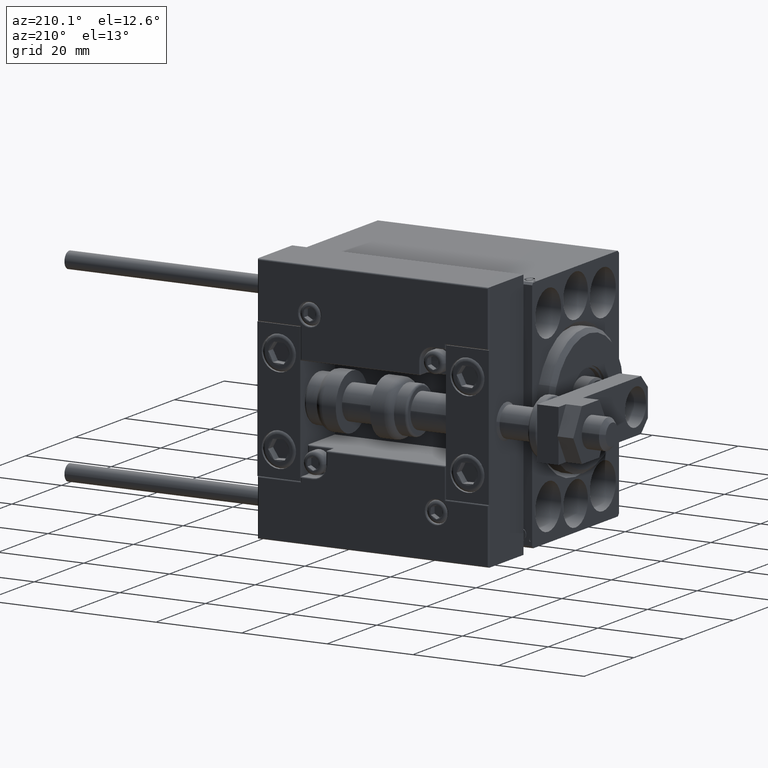
[diagram: clean part render]
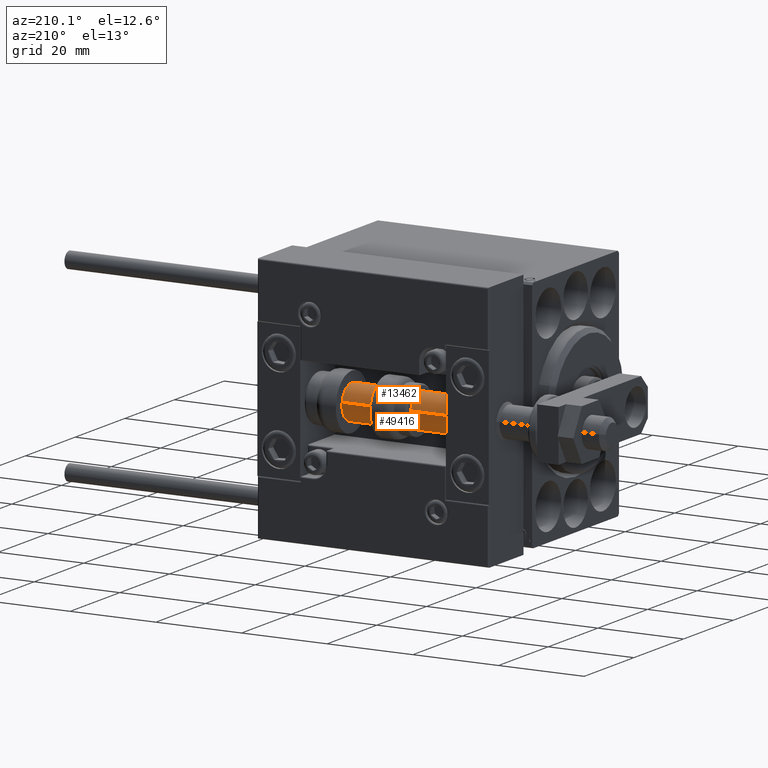
[diagram: same view with one multi-face feature highlighted, each face labeled with its STEP entity id]
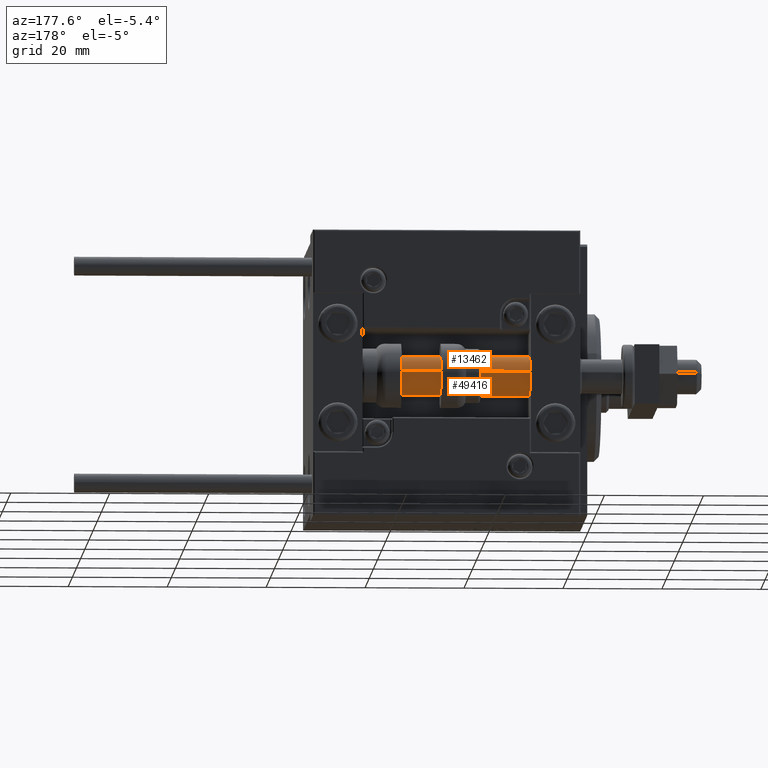
[diagram: same view with one multi-face feature highlighted, each face labeled with its STEP entity id]
A machine part, auxiliary view. The highlighted faces form ONE feature: a constant-radius fillet chain: 2 tangent blend faces with common blend radius 4 mm. The faces share edges in the B-rep.
A second angle (auxiliary view) of the same feature is appended — it is thin or edge-on in the first view.
Their STEP definitions:
[1] entity #13462 (Cylinder):
#1349 = VERTEX_POINT ( 'NONE', #41423 ) ;
#2511 = FACE_OUTER_BOUND ( 'NONE', #38320, .T. ) ;
#5611 = EDGE_CURVE ( 'NONE', #46534, #7481, #36860, .T. ) ;
#7481 = VERTEX_POINT ( 'NONE', #30285 ) ;
#9385 = ORIENTED_EDGE ( 'NONE', *, *, #5611, .T. ) ;
#9506 = CARTESIAN_POINT ( 'NONE',  ( -4.000000000000000000, 0.000000000000000000, 56.00000000000000000 ) ) ;
#13069 = DIRECTION ( 'NONE',  ( -0.000000000000000000, -0.000000000000000000, -1.000000000000000000 ) ) ;
#13462 = ADVANCED_FACE ( 'NONE', ( #2511 ), #45094, .T. ) ;
#19023 = CIRCLE ( 'NONE', #36840, 4.000000000000000000 ) ;
#20315 = CARTESIAN_POINT ( 'NONE',  ( 0.000000000000000000, 0.000000000000000000, 2.000000000000036415 ) ) ;
#20431 = DIRECTION ( 'NONE',  ( 1.000000000000000000, 0.000000000000000000, 0.000000000000000000 ) ) ;
#20774 = CIRCLE ( 'NONE', #37777, 4.000000000000000000 ) ;
#21395 = CARTESIAN_POINT ( 'NONE',  ( 4.000000000000000000, 4.898587196589412829E-16, 56.00000000000000000 ) ) ;
#22328 = CARTESIAN_POINT ( 'NONE',  ( 4.000000000000000000, 4.898587196589412829E-16, 56.00000000000000000 ) ) ;
#22341 = VERTEX_POINT ( 'NONE', #29354 ) ;
#22644 = EDGE_CURVE ( 'NONE', #46534, #22341, #19023, .T. ) ;
#28036 = ORIENTED_EDGE ( 'NONE', *, *, #43058, .T. ) ;
#29354 = CARTESIAN_POINT ( 'NONE',  ( -4.000000000000000000, 0.000000000000000000, 56.00000000000000000 ) ) ;
#30285 = CARTESIAN_POINT ( 'NONE',  ( 4.000000000000000000, 4.898587196589412829E-16, 2.000000000000036415 ) ) ;
#33469 = DIRECTION ( 'NONE',  ( -0.000000000000000000, -0.000000000000000000, -1.000000000000000000 ) ) ;
#34091 = VECTOR ( 'NONE', #13069, 1000.000000000000000 ) ;
#35601 = VECTOR ( 'NONE', #40165, 1000.000000000000000 ) ;
#35891 = AXIS2_PLACEMENT_3D ( 'NONE', #48901, #33469, #37003 ) ;
#36840 = AXIS2_PLACEMENT_3D ( 'NONE', #47551, #40198, #20431 ) ;
#36860 = LINE ( 'NONE', #21395, #35601 ) ;
#37003 = DIRECTION ( 'NONE',  ( -1.000000000000000000, 0.000000000000000000, 0.000000000000000000 ) ) ;
#37777 = AXIS2_PLACEMENT_3D ( 'NONE', #20315, #43888, #47179 ) ;
#38320 = EDGE_LOOP ( 'NONE', ( #44728, #9385, #28036, #39001 ) ) ;
#39001 = ORIENTED_EDGE ( 'NONE', *, *, #40941, .F. ) ;
#40165 = DIRECTION ( 'NONE',  ( -0.000000000000000000, -0.000000000000000000, -1.000000000000000000 ) ) ;
#40198 = DIRECTION ( 'NONE',  ( 0.000000000000000000, 0.000000000000000000, 1.000000000000000000 ) ) ;
#40941 = EDGE_CURVE ( 'NONE', #22341, #1349, #48036, .T. ) ;
#41423 = CARTESIAN_POINT ( 'NONE',  ( -4.000000000000000000, 0.000000000000000000, 2.000000000000036415 ) ) ;
#43058 = EDGE_CURVE ( 'NONE', #7481, #1349, #20774, .T. ) ;
#43888 = DIRECTION ( 'NONE',  ( -0.000000000000000000, -0.000000000000000000, 1.000000000000000000 ) ) ;
#44728 = ORIENTED_EDGE ( 'NONE', *, *, #22644, .F. ) ;
#45094 = CYLINDRICAL_SURFACE ( 'NONE', #35891, 4.000000000000000000 ) ;
#46534 = VERTEX_POINT ( 'NONE', #22328 ) ;
#47179 = DIRECTION ( 'NONE',  ( 1.000000000000000000, 0.000000000000000000, 0.000000000000000000 ) ) ;
#47551 = CARTESIAN_POINT ( 'NONE',  ( 0.000000000000000000, 0.000000000000000000, 56.00000000000000000 ) ) ;
#48036 = LINE ( 'NONE', #9506, #34091 ) ;
#48901 = CARTESIAN_POINT ( 'NONE',  ( 0.000000000000000000, 0.000000000000000000, 56.00000000000000000 ) ) ;
[2] entity #49416 (Cylinder):
#871 = DIRECTION ( 'NONE',  ( 1.000000000000000000, 0.000000000000000000, 0.000000000000000000 ) ) ;
#1222 = ORIENTED_EDGE ( 'NONE', *, *, #48298, .T. ) ;
#1349 = VERTEX_POINT ( 'NONE', #41423 ) ;
#5611 = EDGE_CURVE ( 'NONE', #46534, #7481, #36860, .T. ) ;
#7481 = VERTEX_POINT ( 'NONE', #30285 ) ;
#8244 = ORIENTED_EDGE ( 'NONE', *, *, #40941, .T. ) ;
#8758 = DIRECTION ( 'NONE',  ( 0.000000000000000000, 0.000000000000000000, 1.000000000000000000 ) ) ;
#9196 = CARTESIAN_POINT ( 'NONE',  ( 0.000000000000000000, 0.000000000000000000, 56.00000000000000000 ) ) ;
#9437 = DIRECTION ( 'NONE',  ( -1.000000000000000000, 0.000000000000000000, 0.000000000000000000 ) ) ;
#9506 = CARTESIAN_POINT ( 'NONE',  ( -4.000000000000000000, 0.000000000000000000, 56.00000000000000000 ) ) ;
#12292 = DIRECTION ( 'NONE',  ( -0.000000000000000000, -0.000000000000000000, 1.000000000000000000 ) ) ;
#12311 = CARTESIAN_POINT ( 'NONE',  ( 0.000000000000000000, 0.000000000000000000, 56.00000000000000000 ) ) ;
#13069 = DIRECTION ( 'NONE',  ( -0.000000000000000000, -0.000000000000000000, -1.000000000000000000 ) ) ;
#13188 = EDGE_LOOP ( 'NONE', ( #24978, #35903, #8244, #1222 ) ) ;
#14483 = CIRCLE ( 'NONE', #46055, 4.000000000000000000 ) ;
#17039 = CYLINDRICAL_SURFACE ( 'NONE', #47730, 4.000000000000000000 ) ;
#21395 = CARTESIAN_POINT ( 'NONE',  ( 4.000000000000000000, 4.898587196589412829E-16, 56.00000000000000000 ) ) ;
#21579 = FACE_OUTER_BOUND ( 'NONE', #13188, .T. ) ;
#22328 = CARTESIAN_POINT ( 'NONE',  ( 4.000000000000000000, 4.898587196589412829E-16, 56.00000000000000000 ) ) ;
#22341 = VERTEX_POINT ( 'NONE', #29354 ) ;
#24083 = AXIS2_PLACEMENT_3D ( 'NONE', #12311, #8758, #871 ) ;
#24978 = ORIENTED_EDGE ( 'NONE', *, *, #5611, .F. ) ;
#28004 = DIRECTION ( 'NONE',  ( 1.000000000000000000, 0.000000000000000000, 0.000000000000000000 ) ) ;
#28618 = EDGE_CURVE ( 'NONE', #22341, #46534, #44320, .T. ) ;
#29354 = CARTESIAN_POINT ( 'NONE',  ( -4.000000000000000000, 0.000000000000000000, 56.00000000000000000 ) ) ;
#30285 = CARTESIAN_POINT ( 'NONE',  ( 4.000000000000000000, 4.898587196589412829E-16, 2.000000000000036415 ) ) ;
#34091 = VECTOR ( 'NONE', #13069, 1000.000000000000000 ) ;
#35601 = VECTOR ( 'NONE', #40165, 1000.000000000000000 ) ;
#35903 = ORIENTED_EDGE ( 'NONE', *, *, #28618, .F. ) ;
#36860 = LINE ( 'NONE', #21395, #35601 ) ;
#38905 = CARTESIAN_POINT ( 'NONE',  ( 0.000000000000000000, 0.000000000000000000, 2.000000000000036415 ) ) ;
#40165 = DIRECTION ( 'NONE',  ( -0.000000000000000000, -0.000000000000000000, -1.000000000000000000 ) ) ;
#40941 = EDGE_CURVE ( 'NONE', #22341, #1349, #48036, .T. ) ;
#41423 = CARTESIAN_POINT ( 'NONE',  ( -4.000000000000000000, 0.000000000000000000, 2.000000000000036415 ) ) ;
#44320 = CIRCLE ( 'NONE', #24083, 4.000000000000000000 ) ;
#46055 = AXIS2_PLACEMENT_3D ( 'NONE', #38905, #12292, #28004 ) ;
#46534 = VERTEX_POINT ( 'NONE', #22328 ) ;
#47730 = AXIS2_PLACEMENT_3D ( 'NONE', #9196, #48454, #9437 ) ;
#48036 = LINE ( 'NONE', #9506, #34091 ) ;
#48298 = EDGE_CURVE ( 'NONE', #1349, #7481, #14483, .T. ) ;
#48454 = DIRECTION ( 'NONE',  ( -0.000000000000000000, -0.000000000000000000, -1.000000000000000000 ) ) ;
#49416 = ADVANCED_FACE ( 'NONE', ( #21579 ), #17039, .T. ) ;